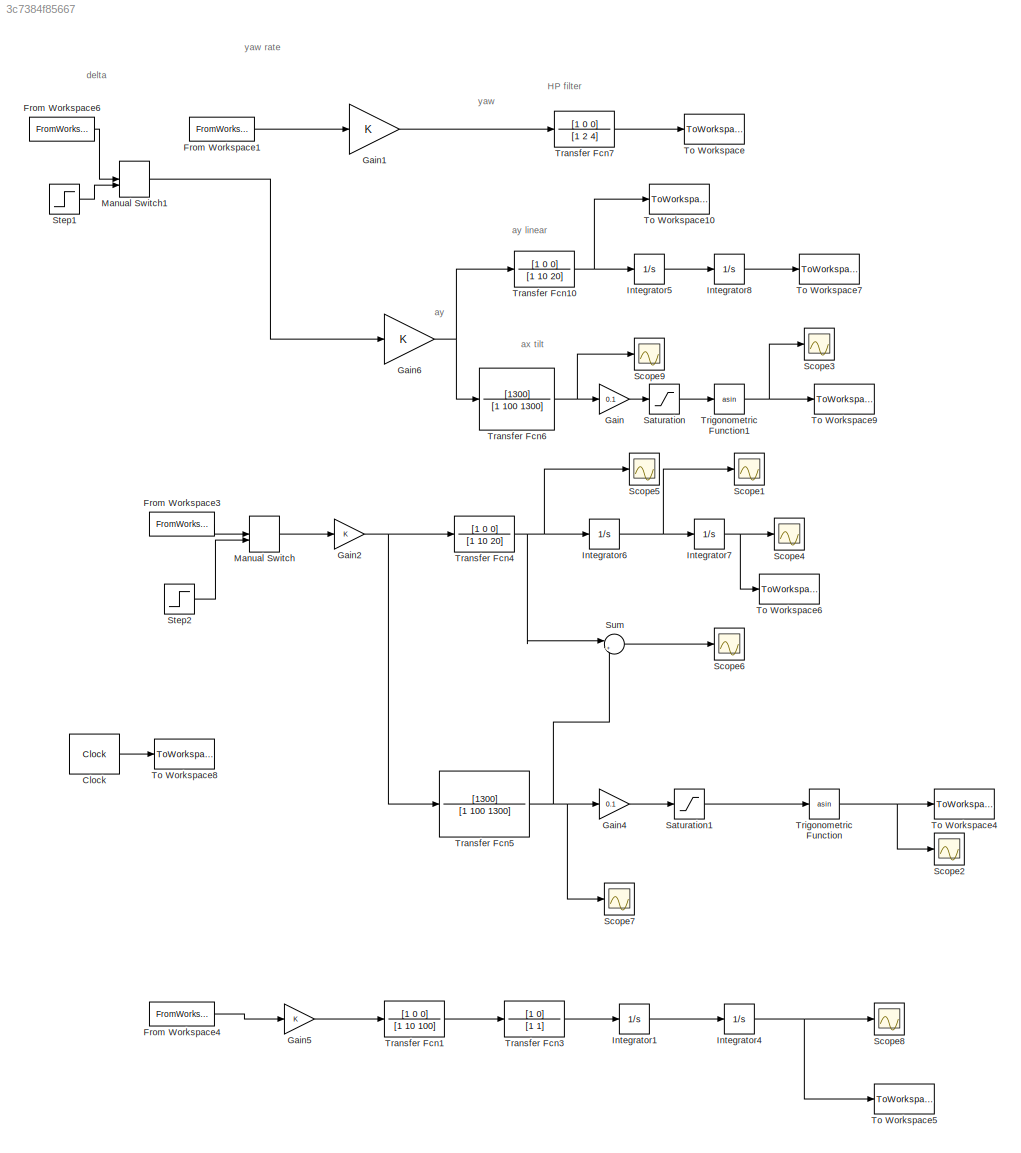
MODEL slx_3c7384f85667
KIND model
CONFIG AbsTol = auto
CONFIG FixedStep = 0.01
CONFIG MaxStep = auto
CONFIG MinStep = auto
CONFIG RelTol = 1e-3
CONFIG SampleTimeConstraint = Unconstrained
CONFIG Solver = ode4
CONFIG SolverMode = SingleTasking
CONFIG SolverName = ode4
CONFIG StartTime = 0.0
CONFIG StopTime = 45.77
BLOCK [Clock] Clock
  DisplayTime = on
BLOCK [FromWorkspace] From Workspace1
  SampleTime = 0.01
  VariableName = signal_yaw
  ZeroCross = on
BLOCK [FromWorkspace] From Workspace3
  SampleTime = 0.01
  VariableName = signal_x
  ZeroCross = on
BLOCK [FromWorkspace] From Workspace4
  SampleTime = 0.01
  VariableName = signal_z
  ZeroCross = on
BLOCK [FromWorkspace] From Workspace6
  SampleTime = 0.01
  VariableName = signal_y
  ZeroCross = on
BLOCK [Gain] Gain
  Gain = 0.1
  OutDataTypeStr = Inherit: Inherit via internal rule
  ParamDataTypeStr = Inherit: Inherit via internal rule
  SaturateOnIntegerOverflow = off
BLOCK [Gain] Gain1
  OutDataTypeStr = Inherit: Inherit via internal rule
  ParamDataTypeStr = Inherit: Inherit via internal rule
  SaturateOnIntegerOverflow = off
BLOCK [Gain] Gain2
  OutDataTypeStr = Inherit: Inherit via internal rule
  ParamDataTypeStr = Inherit: Inherit via internal rule
  SaturateOnIntegerOverflow = off
BLOCK [Gain] Gain4
  Gain = 0.1
  OutDataTypeStr = Inherit: Inherit via internal rule
  ParamDataTypeStr = Inherit: Inherit via internal rule
  SaturateOnIntegerOverflow = off
BLOCK [Gain] Gain5
  OutDataTypeStr = Inherit: Inherit via internal rule
  ParamDataTypeStr = Inherit: Inherit via internal rule
  SaturateOnIntegerOverflow = off
BLOCK [Gain] Gain6
  OutDataTypeStr = Inherit: Inherit via internal rule
  ParamDataTypeStr = Inherit: Inherit via internal rule
  SaturateOnIntegerOverflow = off
BLOCK [Integrator] Integrator1
  Ports = [1, 1]
BLOCK [Integrator] Integrator4
  Ports = [1, 1]
BLOCK [Integrator] Integrator5
  Ports = [1, 1]
BLOCK [Integrator] Integrator6
  Ports = [1, 1]
BLOCK [Integrator] Integrator7
  Ports = [1, 1]
BLOCK [Integrator] Integrator8
  Ports = [1, 1]
BLOCK [ManualSwitch] Manual Switch
BLOCK [ManualSwitch] Manual Switch1
BLOCK [Saturate] Saturation
  InputPortMap = u0
  LowerLimit = -1
  Ports = [1, 1]
  UpperLimit = 1
BLOCK [Saturate] Saturation1
  InputPortMap = u0
  LowerLimit = -1
  Ports = [1, 1]
  UpperLimit = 1
BLOCK [Scope] Scope1
  Ports = [1]
  ScopeSpecificationString = C++SS(StrPVP('Location','[188, 365, 512, 604]'),StrPVP('Open','off'),MxPVP('AxesTitles',24,'struct(''axes1'',''%<SignalLabel>'')'),MxPVP('ScopeGraphics',28,'struct(''FigureColor'',''[0.5 0.5 0.5]'',''AxesColor'',''[0 0 0]'',''AxesTickColor'',''[1 1 1]'',''LineColors'',''[1 1 0;1 0 1;0 1 1;1 0 0;0 1 0;0 0 1]'',''LineStyles'',''-|-|-|-|-|-'',''LineWidths'',''[0.5 0.5 0.5 0.5 0.5 0.5]'',''MarkerStyle...<+219ch>  <repeated x3 — deduplicated; at blocks: Scope1, Scope4, Scope6>
BLOCK [Scope] Scope2
  Ports = [1]
  ScopeSpecificationString = C++SS(StrPVP('Location','[188, 365, 512, 604]'),StrPVP('Open','off'),MxPVP('AxesTitles',24,'struct(''axes1'',''%<SignalLabel>'')'),MxPVP('ScopeGraphics',28,'struct(''FigureColor'',''[0.5 0.5 0.5]'',''AxesColor'',''[0 0 0]'',''AxesTickColor'',''[1 1 1]'',''LineColors'',''[1 1 0;1 0 1;0 1 1;1 0 0;0 1 0;0 0 1]'',''LineStyles'',''-|-|-|-|-|-'',''LineWidths'',''[0.5 0.5 0.5 0.5 0.5 0.5]'',''MarkerStyle...<+302ch>
BLOCK [Scope] Scope3
  Ports = [1]
  ScopeSpecificationString = C++SS(StrPVP('Location','[188, 365, 512, 604]'),StrPVP('Open','off'),MxPVP('AxesTitles',24,'struct(''axes1'',''%<SignalLabel>'')'),MxPVP('ScopeGraphics',28,'struct(''FigureColor'',''[0.5 0.5 0.5]'',''AxesColor'',''[0 0 0]'',''AxesTickColor'',''[1 1 1]'',''LineColors'',''[1 1 0;1 0 1;0 1 1;1 0 0;0 1 0;0 0 1]'',''LineStyles'',''-|-|-|-|-|-'',''LineWidths'',''[0.5 0.5 0.5 0.5 0.5 0.5]'',''MarkerStyle...<+251ch>
BLOCK [Scope] Scope4
  Ports = [1]
BLOCK [Scope] Scope5
  Ports = [1]
  ScopeSpecificationString = C++SS(StrPVP('Location','[188, 365, 512, 604]'),StrPVP('Open','off'),MxPVP('AxesTitles',24,'struct(''axes1'',''%<SignalLabel>'')'),StrPVP('ShowLegends','off'),StrPVP('ScrollMode','off'),StrPVP('LimitDataPoints','on'),StrPVP('DataFormat','Array'),StrPVP('Decimation','1'),StrPVP('BlockParamSampleInput','off'))
BLOCK [Scope] Scope6
  Ports = [1]
BLOCK [Scope] Scope7
  Ports = [1]
  ScopeSpecificationString = C++SS(StrPVP('Location','[188, 365, 1332, 1077]'),StrPVP('Open','off'),MxPVP('AxesTitles',24,'struct(''axes1'',''%<SignalLabel>'')'),MxPVP('ScopeGraphics',28,'struct(''FigureColor'',''[0.5 0.5 0.5]'',''AxesColor'',''[0 0 0]'',''AxesTickColor'',''[1 1 1]'',''LineColors'',''[1 1 0;1 0 1;0 1 1;1 0 0;0 1 0;0 0 1]'',''LineStyles'',''-|-|-|-|-|-'',''LineWidths'',''[0.5 0.5 0.5 0.5 0.5 0.5]'',''MarkerSty...<+221ch>
BLOCK [Scope] Scope8
  Ports = [1]
  ScopeSpecificationString = C++SS(StrPVP('Location','[188, 365, 512, 604]'),StrPVP('Open','off'),MxPVP('AxesTitles',24,'struct(''axes1'',''%<SignalLabel>'')'),MxPVP('ScopeGraphics',28,'struct(''FigureColor'',''[0.5 0.5 0.5]'',''AxesColor'',''[0 0 0]'',''AxesTickColor'',''[1 1 1]'',''LineColors'',''[1 1 0;1 0 1;0 1 1;1 0 0;0 1 0;0 0 1]'',''LineStyles'',''-|-|-|-|-|-'',''LineWidths'',''[0.5 0.5 0.5 0.5 0.5 0.5]'',''MarkerStyle...<+270ch>
BLOCK [Scope] Scope9
  Ports = [1]
  ScopeSpecificationString = C++SS(StrPVP('Location','[188, 365, 512, 604]'),StrPVP('Open','off'),MxPVP('AxesTitles',24,'struct(''axes1'',''%<SignalLabel>'')'),MxPVP('ScopeGraphics',28,'struct(''FigureColor'',''[0.5 0.5 0.5]'',''AxesColor'',''[0 0 0]'',''AxesTickColor'',''[1 1 1]'',''LineColors'',''[1 1 0;1 0 1;0 1 1;1 0 0;0 1 0;0 0 1]'',''LineStyles'',''-|-|-|-|-|-'',''LineWidths'',''[0.5 0.5 0.5 0.5 0.5 0.5]'',''MarkerStyle...<+251ch>
BLOCK [Step] Step1
  SampleTime = 0
  Time = 0
BLOCK [Step] Step2
  SampleTime = 0
  Time = 0
BLOCK [Sum] Sum
  IconShape = round
  InputSameDT = off
  Inputs = |++
  OutDataTypeStr = Inherit: Inherit via internal rule
  Ports = [2, 1]
  SaturateOnIntegerOverflow = off
BLOCK [ToWorkspace] To Workspace
  Decimation = 2
  FixptAsFi = on
  MaxDataPoints = inf
  Ports = [1]
  SampleTime = -1
  Save2DSignal = 3-D array (concatenate along third dimension)
  VariableName = anglez
BLOCK [ToWorkspace] To Workspace10
  Decimation = 2
  FixptAsFi = on
  MaxDataPoints = inf
  Ports = [1]
  SampleTime = -1
  Save2DSignal = 3-D array (concatenate along third dimension)
  VariableName = ay
BLOCK [ToWorkspace] To Workspace4
  Decimation = 2
  FixptAsFi = on
  MaxDataPoints = inf
  Ports = [1]
  SampleTime = -1
  Save2DSignal = 3-D array (concatenate along third dimension)
  VariableName = aytilt
BLOCK [ToWorkspace] To Workspace5
  Decimation = 2
  FixptAsFi = on
  MaxDataPoints = inf
  Ports = [1]
  SampleTime = -1
  Save2DSignal = 2-D array (concatenate along first dimension)
  VariableName = zdesired
BLOCK [ToWorkspace] To Workspace6
  Decimation = 2
  FixptAsFi = on
  MaxDataPoints = inf
  Ports = [1]
  SampleTime = -1
  Save2DSignal = 2-D array (concatenate along first dimension)
  VariableName = xdesired
BLOCK [ToWorkspace] To Workspace7
  Decimation = 2
  FixptAsFi = on
  MaxDataPoints = inf
  Ports = [1]
  SampleTime = -1
  Save2DSignal = 2-D array (concatenate along first dimension)
  VariableName = ydesired
BLOCK [ToWorkspace] To Workspace8
  Decimation = 2
  FixptAsFi = on
  MaxDataPoints = inf
  Ports = [1]
  SampleTime = -1
  Save2DSignal = 2-D array (concatenate along first dimension)
  VariableName = simtime
BLOCK [ToWorkspace] To Workspace9
  Decimation = 2
  FixptAsFi = on
  MaxDataPoints = inf
  Ports = [1]
  SampleTime = -1
  Save2DSignal = 2-D array (concatenate along first dimension)
  VariableName = axtilt
BLOCK [TransferFcn] Transfer Fcn1
  Denominator = [1 10 100]
  Numerator = [1 0 0]
BLOCK [TransferFcn] Transfer Fcn10
  Denominator = [1 10 20]
  Numerator = [1 0 0]
BLOCK [TransferFcn] Transfer Fcn3
  Denominator = [1 1]
  Numerator = [1 0]
BLOCK [TransferFcn] Transfer Fcn4
  Denominator = [1 10 20]
  Numerator = [1 0 0]
BLOCK [TransferFcn] Transfer Fcn5
  Denominator = [1 100 1300]
  Numerator = [1300]
BLOCK [TransferFcn] Transfer Fcn6
  Denominator = [1 100 1300]
  Numerator = [1300]
BLOCK [TransferFcn] Transfer Fcn7
  Denominator = [1 2 4]
  Numerator = [1 0 0]
BLOCK [Trigonometry] Trigonometric Function
  Operator = asin
  Ports = [1, 1]
BLOCK [Trigonometry] Trigonometric Function1
  Operator = asin
  Ports = [1, 1]
ANNOTATION (root): HP filter
ANNOTATION (root): ax tilt
ANNOTATION (root): ay
ANNOTATION (root): ay linear
ANNOTATION (root): delta
ANNOTATION (root): yaw
ANNOTATION (root): yaw rate
LINE Clock:1 -> To Workspace8:1
LINE From Workspace1:1 -> Gain1:1
LINE From Workspace3:1 -> Manual Switch:1
LINE From Workspace4:1 -> Gain5:1
LINE From Workspace6:1 -> Manual Switch1:1
LINE Gain1:1 -> Transfer Fcn7:1
NET Gain2:1 -> Transfer Fcn4:1, Transfer Fcn5:1
LINE Gain4:1 -> Saturation1:1
LINE Gain5:1 -> Transfer Fcn1:1
NET Gain6:1 -> Transfer Fcn10:1, Transfer Fcn6:1
LINE Gain:1 -> Saturation:1
LINE Integrator1:1 -> Integrator4:1
NET Integrator4:1 -> Scope8:1, To Workspace5:1
LINE Integrator5:1 -> Integrator8:1
NET Integrator6:1 -> Integrator7:1, Scope1:1
NET Integrator7:1 -> Scope4:1, To Workspace6:1
LINE Integrator8:1 -> To Workspace7:1
LINE Manual Switch1:1 -> Gain6:1
LINE Manual Switch:1 -> Gain2:1
LINE Saturation1:1 -> Trigonometric Function:1
LINE Saturation:1 -> Trigonometric Function1:1
LINE Step1:1 -> Manual Switch1:2
LINE Step2:1 -> Manual Switch:2
LINE Sum:1 -> Scope6:1
NET Transfer Fcn10:1 -> Integrator5:1, To Workspace10:1
LINE Transfer Fcn1:1 -> Transfer Fcn3:1
LINE Transfer Fcn3:1 -> Integrator1:1
NET Transfer Fcn4:1 -> Integrator6:1, Scope5:1, Sum:1
NET Transfer Fcn5:1 -> Gain4:1, Scope7:1, Sum:2
NET Transfer Fcn6:1 -> Gain:1, Scope9:1
LINE Transfer Fcn7:1 -> To Workspace:1
NET Trigonometric Function1:1 -> Scope3:1, To Workspace9:1
NET Trigonometric Function:1 -> Scope2:1, To Workspace4:1
note: NET lines group one-source signal fan-out (src -> all destinations, sorted); 1:1 wires keep LINE
